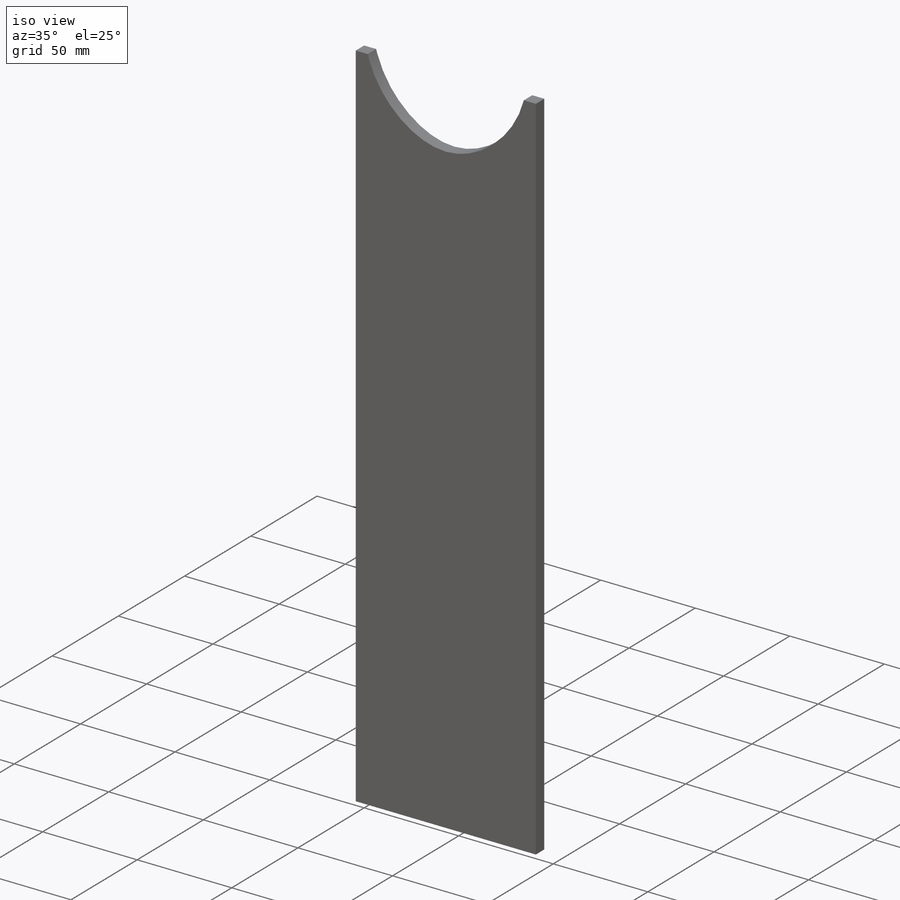
[diagram: iso view]
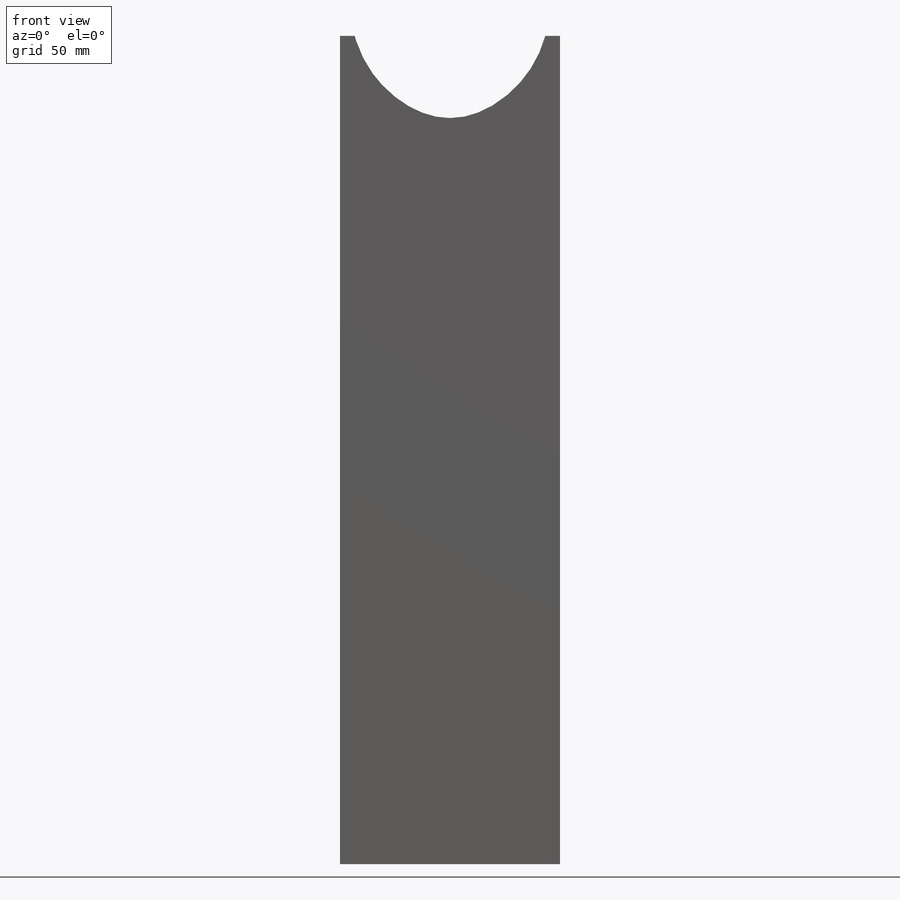
[diagram: front view]
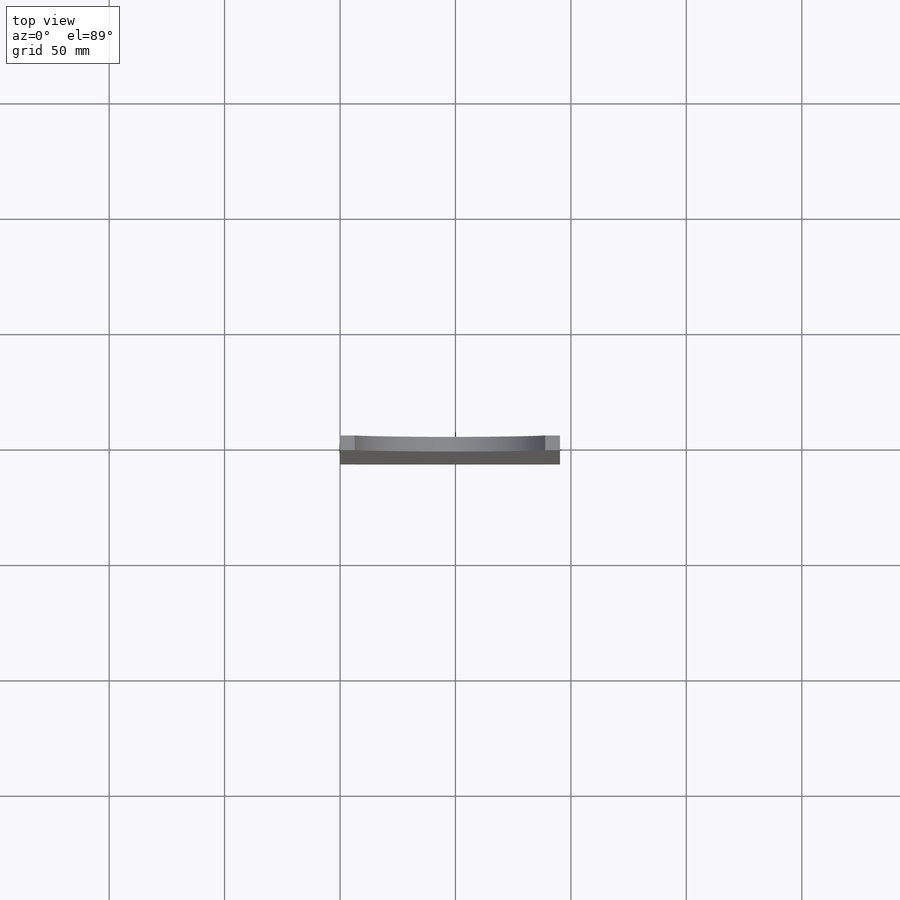
[diagram: top view]
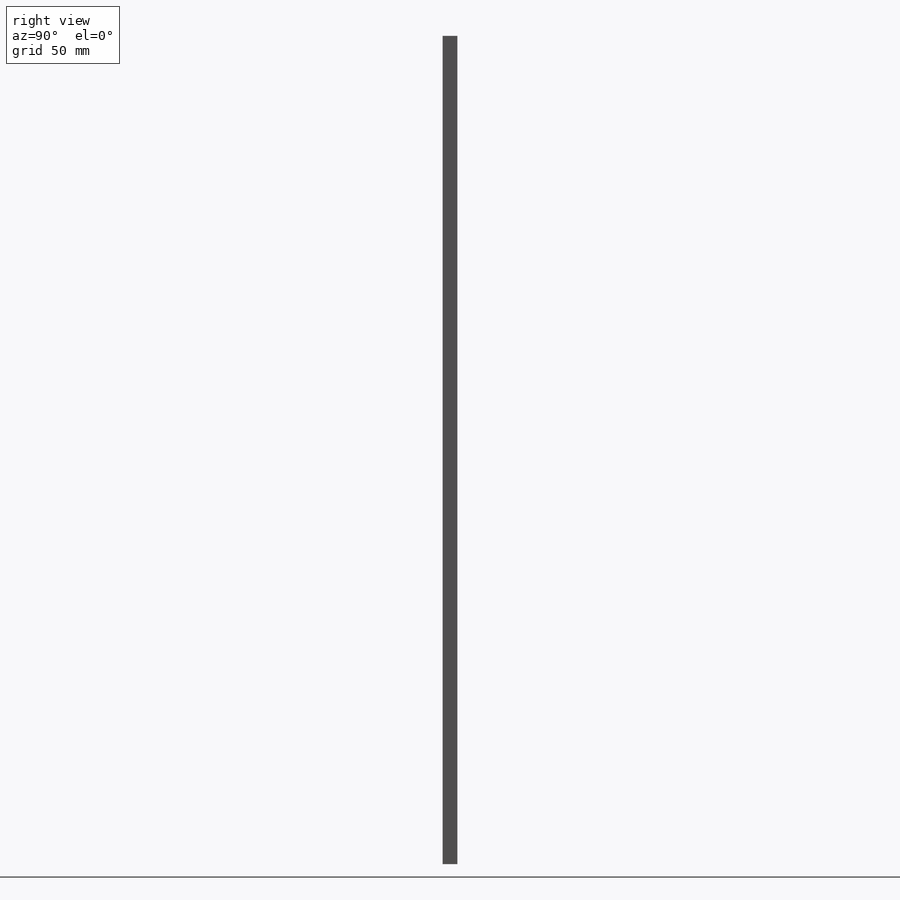
[diagram: right view]
SOLIDWORKS PART (.sldprt)
format: sldprt  version: not decoded by parser v0  size: 251,392 bytes
history: native  units: mm
features: sketch x5, cut_extrude x3, material x1, extrude x1 (+13 scaffold rows collapsed)
feature tree (23):
  scaffold x13  (default folders/planes/origin — collapsed)
  material  "Material <not specified>"
  sketch  "Sketch1"  dims[D1=95.25mm D2=406.4mm]
  extrude  "Boss-Extrude1"  Depth=6.35mm
  sketch  "3DSketch1"
  sketch  "Sketch2"  dims[c1.D1=6.35mm c1.D2=~6.349999mm c1.D3=1.5875mm c2.D1=1.5875mm]
  cut_extrude  "Cut-Extrude1"  Depth=6.35mm
  sketch  "Sketch3"  dims[c1.D5=~8.048615mm c1.D6=6.35mm c1.D7=~13.377318mm c1.D8=6.35mm c1.D9=6.35mm c1.D10=6.35mm c1.D11=3.175mm c1.D1=12.7mm c1.D2=41.275mm c1.D3=38.1mm c1.D4=139.7mm c2.D5=6.35mm c2.D7=6.35mm c2.D9=12.7mm c2.D10=12.7mm]
  cut_extrude  "Cut-Extrude2"  Depth=6.35mm
  sketch  "Sketch4"  dims[c1.D1=~15.728957mm c1.D2=~7.865781mm c1.D3=~7.865781mm c1.D4=~15.728957mm c1.D5=6.35mm c1.D6=6.35mm c2.D1=9.525mm c2.D2=9.525mm c2.D3=12.7mm c2.D4=12.7mm]
  cut_extrude  "Cut-Extrude3"  [1 undecoded]
decode coverage: 7 of 9 modeling features carry decoded parameters
note: ~ marks probable driven/reference dimensions
note: 1 parameter value undecoded
note: suppression state not decoded; provenance and decode notes live in map.json
